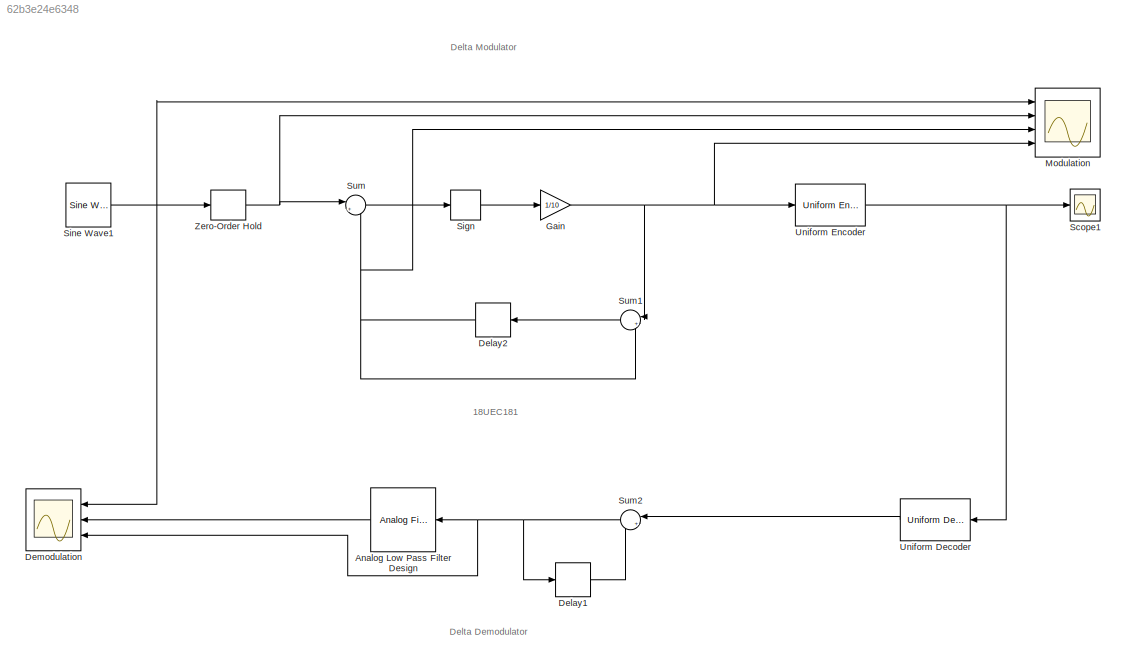
MODEL slx_62b3e24e6348
KIND model
CONFIG AbsTol = auto
CONFIG EnableMultiTasking = off
CONFIG FixedStep = auto
CONFIG MaxStep = auto
CONFIG MinStep = auto
CONFIG RelTol = 1e-3
CONFIG SampleTimeConstraint = Unconstrained
CONFIG Solver = VariableStepAuto
CONFIG SolverName = VariableStepAuto
CONFIG StartTime = 0.0
CONFIG StopTime = 10.0
BLOCK [Reference] Analog Low Pass Filter Design  REF=dsparch4/Analog
Filter Design
  NameLocation = top
  Ports = [1, 1]
  SourceBlock = dsparch4/Analog\nFilter Design
  SourceProductBaseCode = DS
  SourceType = Analog Filter Design
BLOCK [Delay] Delay1
  DelayLength = 1
  InputPortMap = u0
  Ports = [1, 1]
BLOCK [Delay] Delay2
  DelayLength = 1
  InputPortMap = u0
  NameLocation = top
  Ports = [1, 1]
BLOCK [Scope] Demodulation
  Floating = off
  NameLocation = top
  NumInputPorts = 3
  Ports = [3]
  ScopeSpecificationString = Simulink.scopes.TimeScopeBlockCfg('CurrentConfiguration', extmgr.ConfigurationSet(extmgr.Configuration('Core','General UI',true),extmgr.Configuration('Core','Source UI',true),extmgr.Configuration('Sources','WiredSimulink',true,'DataLoggingVariableName','ScopeData2'),extmgr.Configuration('Visuals','Time Domain',true,'SerializedDisplays',{struct('MinYLimReal','-6.25','MaxYLimReal','6.25','YLabelReal...<+2933ch>
BLOCK [Gain] Gain
  Gain = 1/10
BLOCK [Scope] Modulation
  Floating = off
  NumInputPorts = 4
  Ports = [4]
  ScopeSpecificationString = Simulink.scopes.TimeScopeBlockCfg('CurrentConfiguration', extmgr.ConfigurationSet(extmgr.Configuration('Core','General UI',true),extmgr.Configuration('Core','Source UI',true),extmgr.Configuration('Sources','WiredSimulink',true),extmgr.Configuration('Visuals','Time Domain',true,'SerializedDisplays',{struct('MinYLimReal','-6.25','MaxYLimReal','6.25','YLabelReal','','MinYLimMag','0.00000','MaxYLimMag...<+1598ch>
BLOCK [Scope] Scope1
  Floating = off
  NumInputPorts = 1
  Ports = [1]
  ScopeSpecificationString = Simulink.scopes.TimeScopeBlockCfg('CurrentConfiguration', extmgr.ConfigurationSet(extmgr.Configuration('Core','General UI',true),extmgr.Configuration('Core','Source UI',true),extmgr.Configuration('Sources','WiredSimulink',true,'DataLoggingVariableName','ScopeData1'),extmgr.Configuration('Visuals','Time Domain',true,'SerializedDisplays',{struct('MinYLimReal','-4.875','MaxYLimReal','3.875','YLabelRe...<+1433ch>
BLOCK [Signum] Sign
BLOCK [Reference] Sine Wave1  REF=dspsrcs4/Sine Wave
  Ports = [0, 1]
  SourceBlock = dspsrcs4/Sine Wave
  SourceProductBaseCode = DS
  SourceType = Sine Wave
BLOCK [Sum] Sum
  Inputs = |+-
  Ports = [2, 1]
BLOCK [Sum] Sum1
  Inputs = |++
  NameLocation = top
  Ports = [2, 1]
BLOCK [Sum] Sum2
  Inputs = |++
  NameLocation = top
  Ports = [2, 1]
BLOCK [Reference] Uniform Decoder  REF=dspquant2/Uniform
Decoder
  NameLocation = top
  Ports = [1, 1]
  SourceBlock = dspquant2/Uniform\nDecoder
  SourceProductBaseCode = DS
  SourceType = Uniform Decoder
BLOCK [Reference] Uniform Encoder  REF=dspquant2/Uniform
Encoder
  Ports = [1, 1]
  SourceBlock = dspquant2/Uniform\nEncoder
  SourceProductBaseCode = DS
  SourceType = Uniform Encoder
BLOCK [ZeroOrderHold] Zero-Order Hold
  SampleTime = 1/20
ANNOTATION (root): Delta Demodulator
ANNOTATION (root): Delta Modulator
ANNOTATION (root): 18UEC181
LINE Analog Low Pass Filter Design:1 -> Demodulation:2
LINE Delay1:1 -> Sum2:2
NET Delay2:1 -> Modulation:3, Sum1:2, Sum:2
NET Gain:1 -> Modulation:4, Sum1:1, Uniform Encoder:1
LINE Sign:1 -> Gain:1
NET Sine Wave1:1 -> Demodulation:1, Modulation:1, Zero-Order Hold:1
LINE Sum1:1 -> Delay2:1
NET Sum2:1 -> Analog Low Pass Filter Design:1, Delay1:1, Demodulation:3
LINE Sum:1 -> Sign:1
LINE Uniform Decoder:1 -> Sum2:1
NET Uniform Encoder:1 -> Scope1:1, Uniform Decoder:1
NET Zero-Order Hold:1 -> Modulation:2, Sum:1
note: NET lines group one-source signal fan-out (src -> all destinations, sorted); 1:1 wires keep LINE
